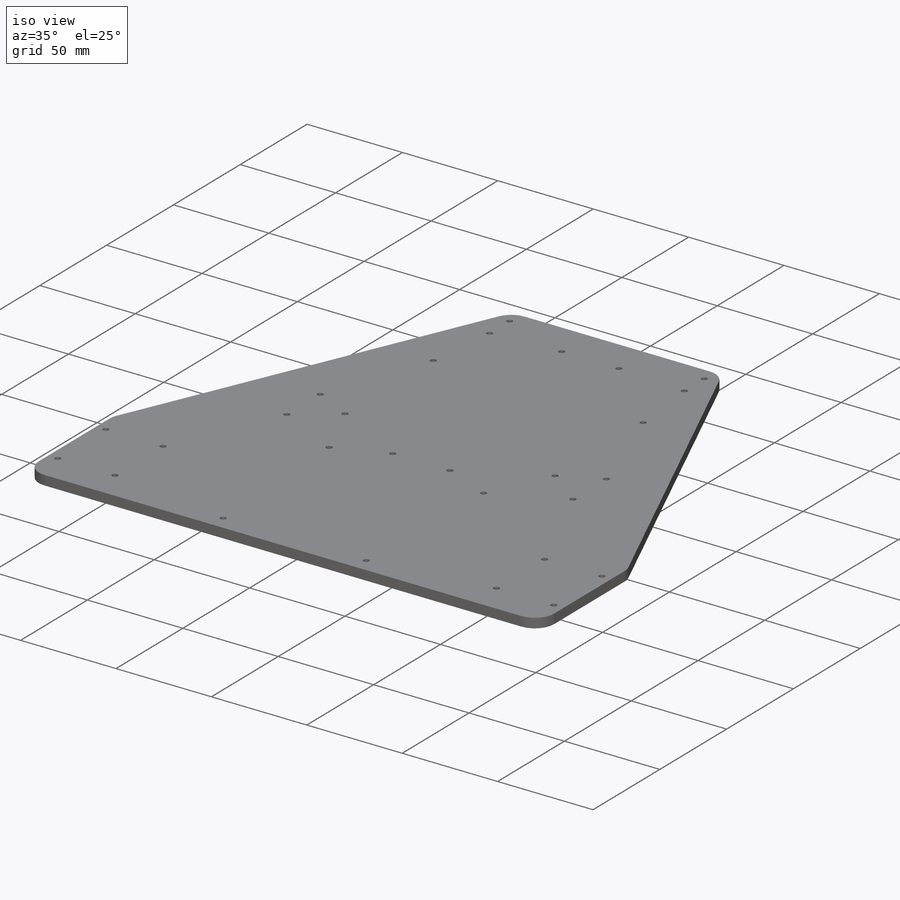
[diagram: iso view]
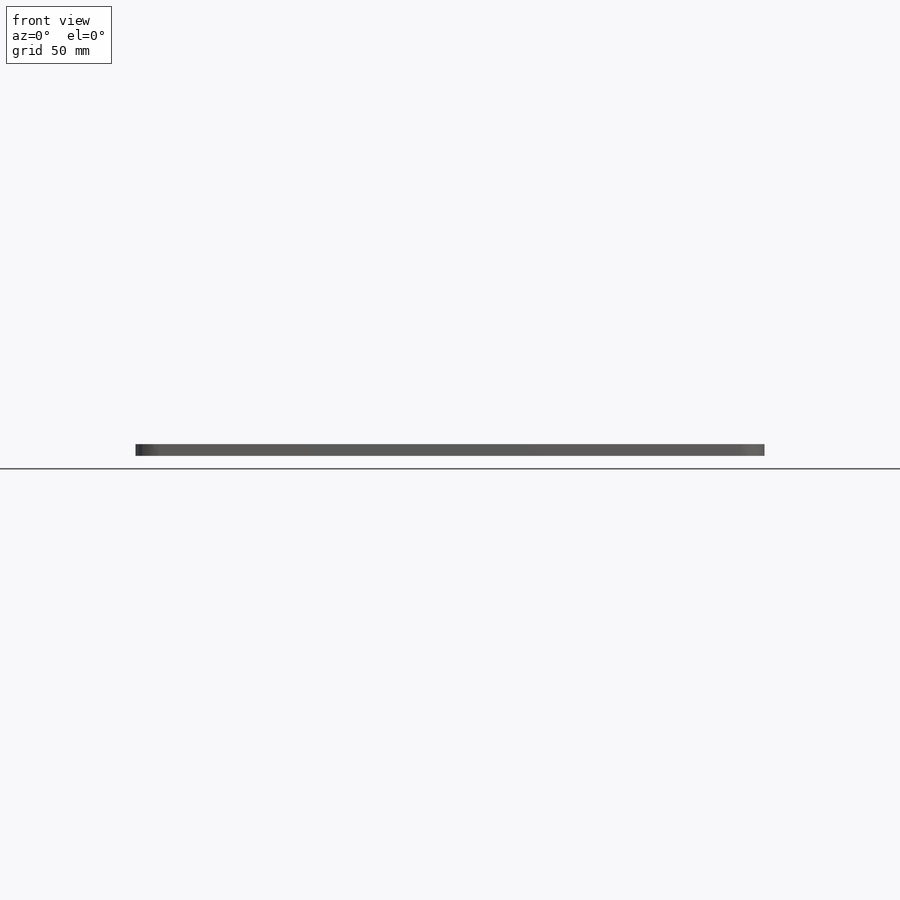
[diagram: front view]
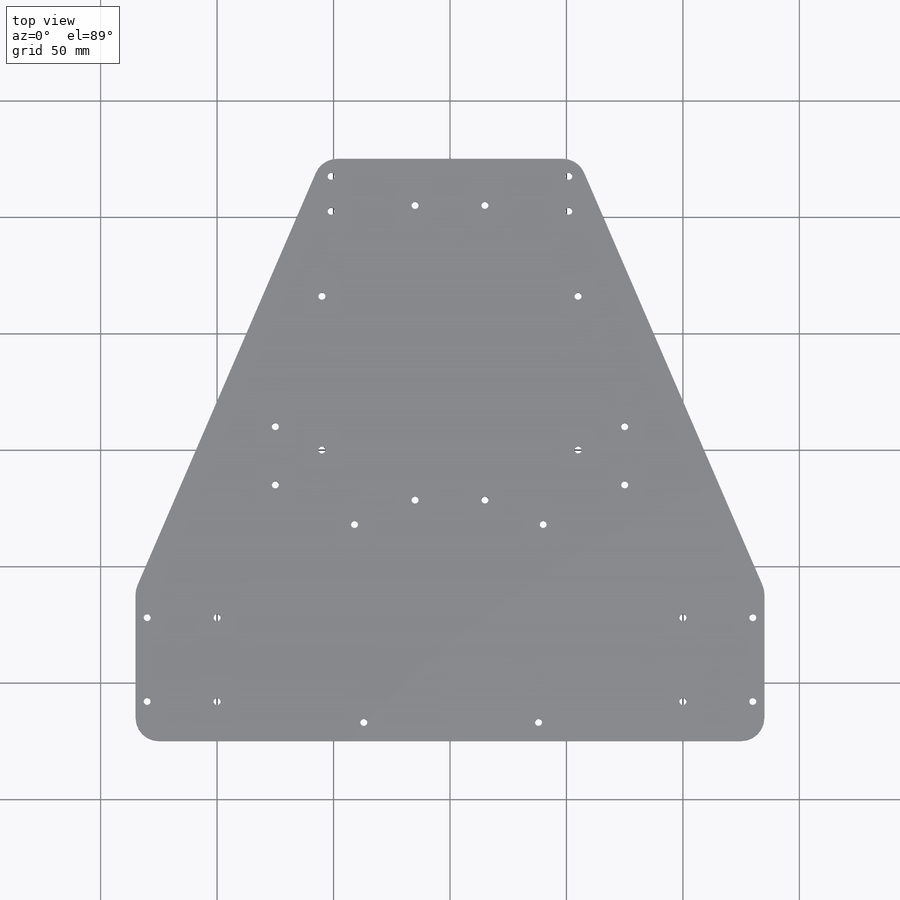
[diagram: top view]
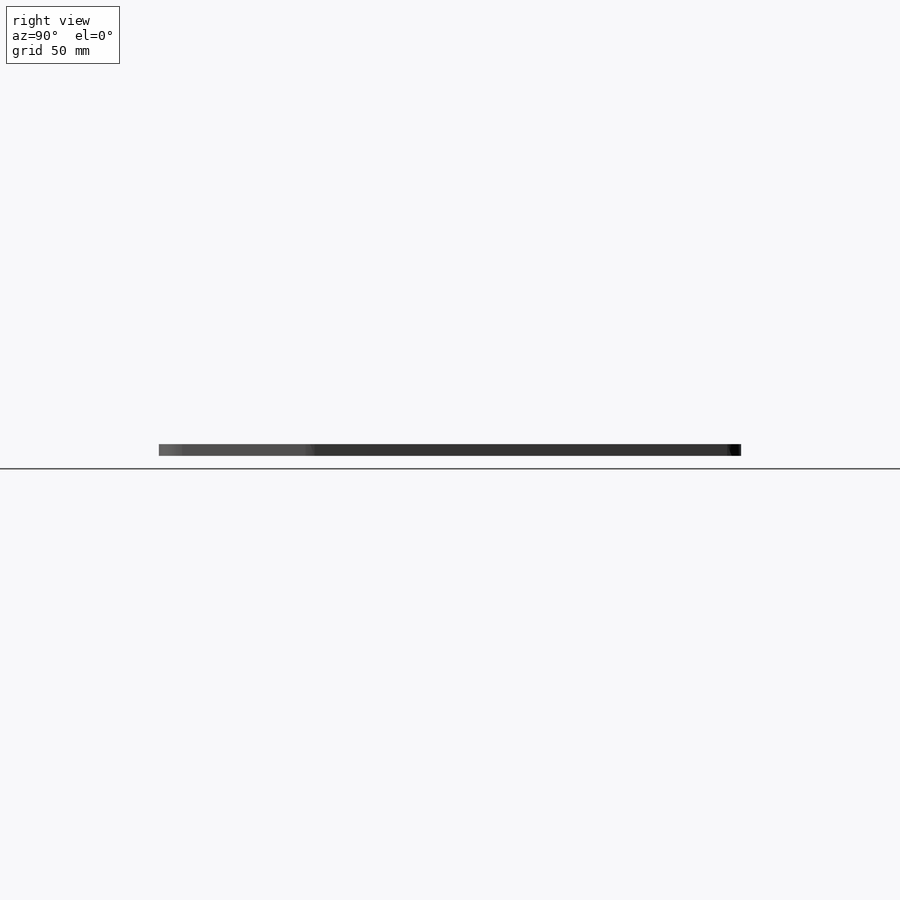
[diagram: right view]
SOLIDWORKS PART (.sldprt)
format: sldprt  version: not decoded by parser v0  size: 520,704 bytes
history: native  units: mm
features: sketch x10, cut_extrude x9, plane x5, material x1, extrude x1, fillet x1 + 2 further entries (+8 scaffold rows collapsed)
feature tree (37):
  scaffold x8  (default folders/planes/origin — collapsed)
  material  "西洋杉"
  "ｻｰﾌｪｽ ﾎﾞﾃﾞｨ"
  "ｿﾘｯﾄﾞ ﾎﾞﾃﾞｨ"
  plane  "正面"
  plane  "平面"
  plane  "右側面"
  sketch  "ｽｹｯﾁ1"  dims[D1=270.0mm D2=250.0mm D3=80.0mm D4=80.0mm D5=185.0mm D6=185.0mm]
  extrude  "シャーシ形成"  Depth=5mm
  sketch  "ｽｹｯﾁ2"  dims[D4=3.0mm D5=3.0mm D10=3.0mm D11=3.0mm D12=3.0mm D13=3.0mm D1=35.0mm D2=5.0mm D3=5.0mm D6=18.0mm D7=18.0mm D8=18.0mm D9=18.0mm D14=65.0mm]
  cut_extrude  "外側モータマウンタ穴"  [1 undecoded]
  fillet  "角ﾌｨﾚｯﾄ"  Radius=10mm
  sketch  "ｽｹｯﾁ9"  dims[D4=3.0mm D5=3.0mm D1=20.0mm D2=15.0mm D3=30.0mm]
  cut_extrude  "キャスター穴"  Depth=5mm
  plane  "平面1"
  plane  "平面2"  Offset=5mm
  sketch  "ｽｹｯﾁ35"  dims[c1.D4=3.0mm c1.D5=~5.153432mm c2.D5=3.0mm c2.D6=3.0mm c2.D7=3.0mm c2.D1=50.0mm c2.D2=50.0mm c2.D3=146.5mm c2.D4=145.0mm c2.D8=10.0mm c2.D9=15.0mm c2.D10=15.0mm c2.D11=10.0mm]
  cut_extrude  "バッテリー固定棒の穴"  Depth=5mm
  sketch  "ｽｹｯﾁ38"  dims[c1.D3=3.0mm c1.D4=3.0mm c1.D6=3.0mm c1.D8=3.0mm c1.D9=3.0mm c1.D1=56.5mm c1.D2=113.0mm c1.D5=30.0mm c2.D6=30.0mm c2.D7=0.0mm c2.D8=36.0mm c2.D9=5.0mm]
  cut_extrude  "内側モータマウンタ穴1"  Depth=5mm
  sketch  "ｽｹｯﾁ39"  dims[c1.D1=3.0mm c1.D2=3.0mm c1.D5=3.0mm c1.D6=3.0mm c1.D3=30.0mm c1.D4=30.0mm c2.D5=0.0mm c2.D6=0.0mm]
  cut_extrude  "内側モータマウンタ穴2"  Depth=5mm
  sketch  "ｽｹｯﾁ40"  dims[c1.D1=3.0mm c1.D2=3.0mm c1.D3=3.0mm c1.D6=3.0mm c1.D8=3.0mm c2.D3=102.0mm c2.D4=7.5mm c2.D5=51.0mm c2.D7=15.0mm c2.D9=15.0mm]
  cut_extrude  "カメラマウンタ穴"  Depth=5mm
  sketch  "ｽｹｯﾁ41"  dims[D1=3.0mm D4=3.0mm D6=3.0mm D7=3.0mm D2=110.0mm D3=60.0mm D5=25.0mm D8=25.0mm D9=110.0mm D10=60.0mm]
  cut_extrude  "センサマウンタ穴"  Depth=5mm
  sketch  "ｽｹｯﾁ43"  dims[D1=3.0mm D4=3.0mm D6=3.0mm D9=3.0mm D2=80.0mm D3=125.0mm D5=66.0mm D7=125.0mm D8=80.0mm D10=66.0mm]
  cut_extrude  "電源ボードなどの穴"  Depth=5mm
  sketch  "ｽｹｯﾁ44"  dims[c1.D1=3.0mm c1.D2=3.0mm c1.D5=3.0mm c1.D6=3.0mm c1.D3=41.0mm c1.D4=40.0mm c1.D7=37.0mm c1.D8=38.0mm c1.D9=85.0mm c1.D10=85.0mm c1.D11=8.0mm c1.D12=8.0mm c1.D13=98.0mm c2.D7=98.0mm c2.D13=97.0mm c2.D8=97.0mm c3.D13=94.0mm c3.D3=94.0mm c3.D4=95.0mm]
  cut_extrude  "CPUタワー穴"  Depth=5mm
decode coverage: 20 of 21 modeling features carry decoded parameters; 2 rows unclassified (native names shown)
note: ~ marks probable driven/reference dimensions
note: 1 parameter value undecoded
note: suppression state not decoded; provenance and decode notes live in map.json
